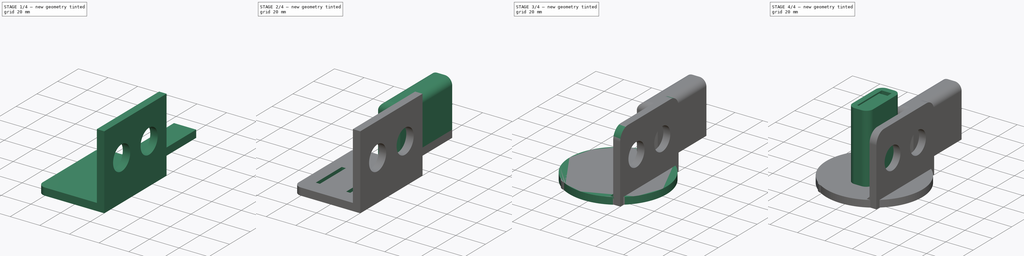
[diagram: build sequence overview — one tinted view per stage of 4, left to right]
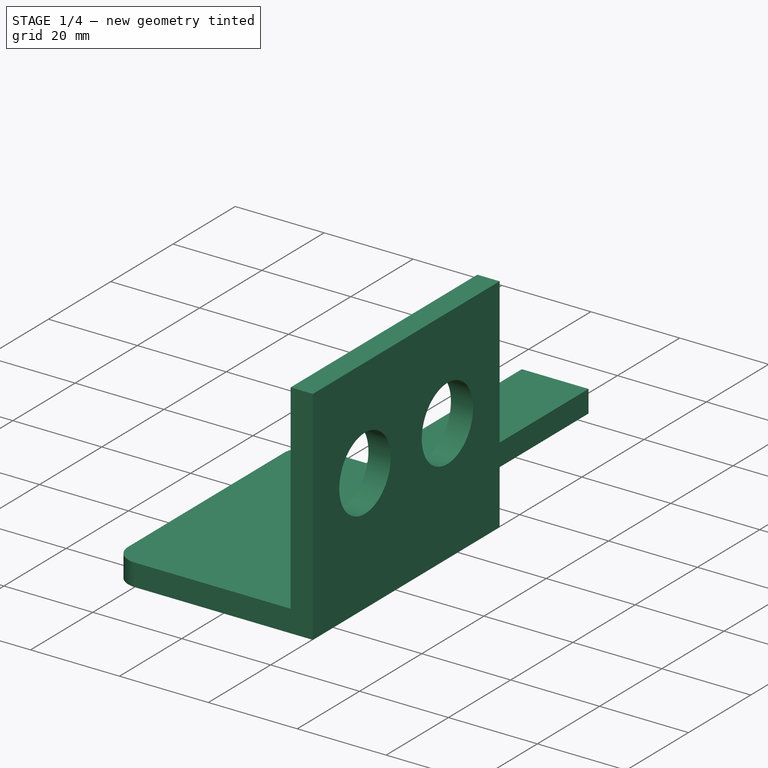
[diagram: stage 1 of 4 — iso view after this stage's code; geometry added in this stage tinted green]
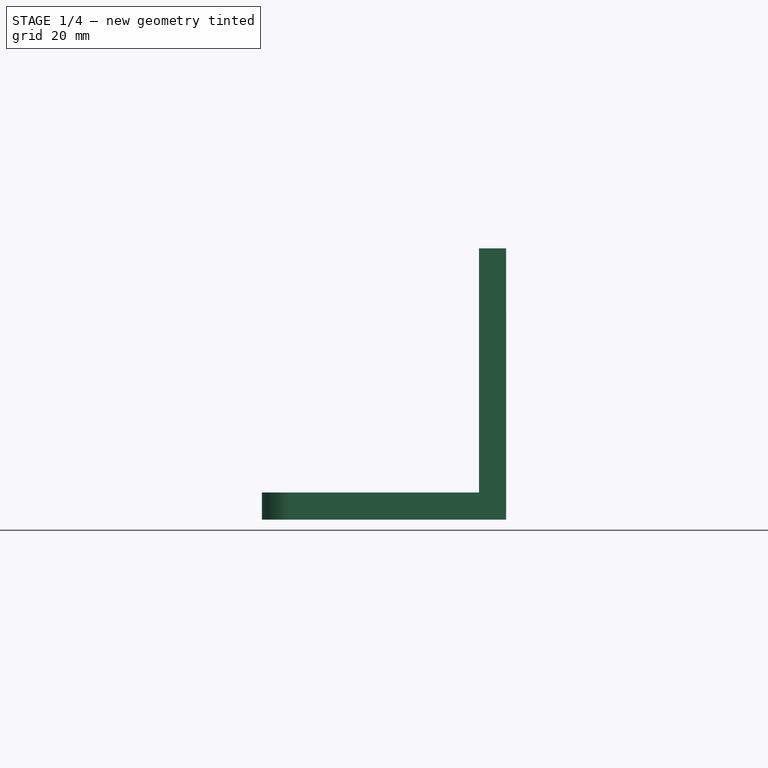
[diagram: stage 1 of 4 — front view after this stage's code; geometry added in this stage tinted green]
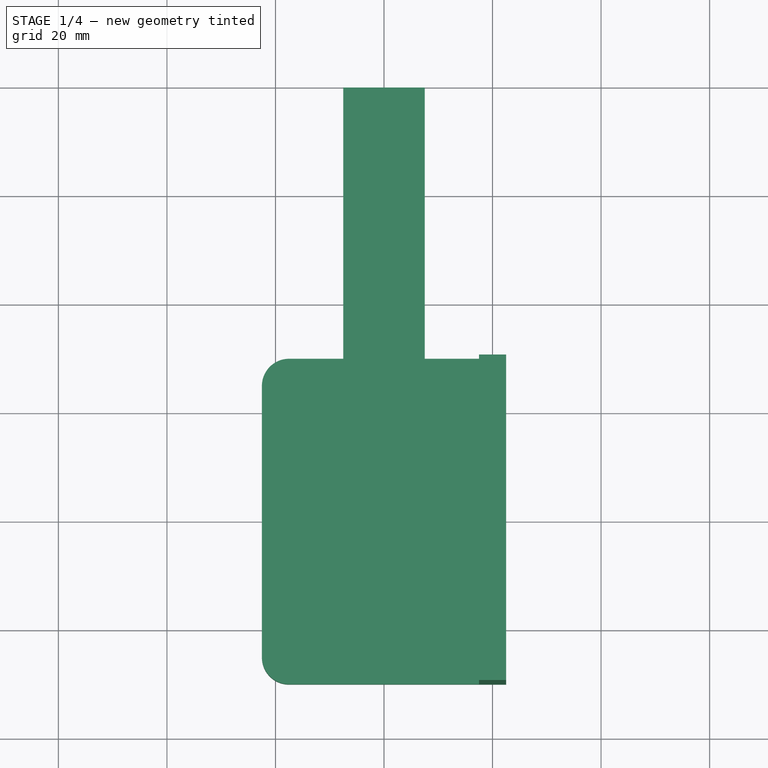
[diagram: stage 1 of 4 — top view after this stage's code; geometry added in this stage tinted green]
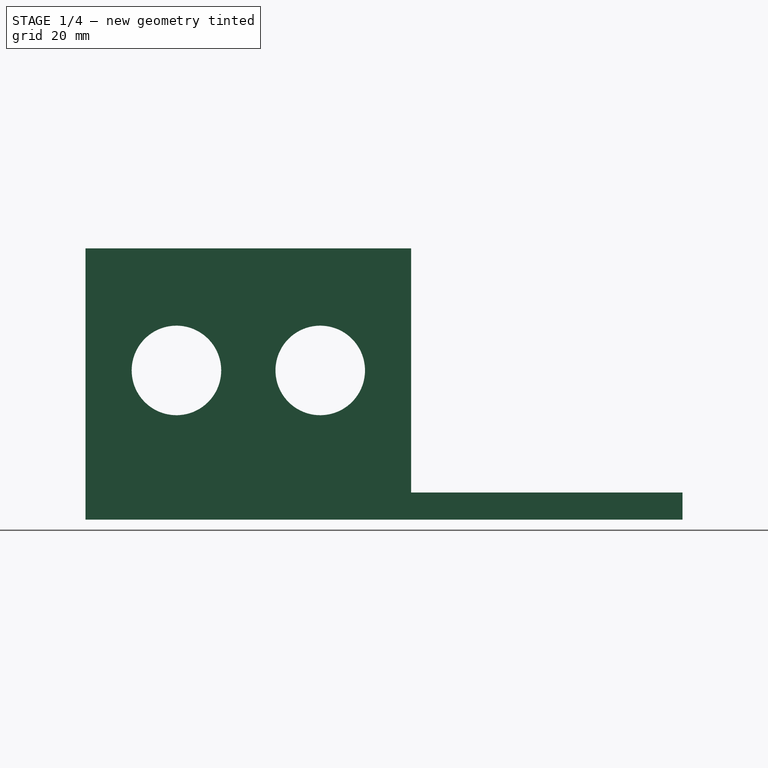
[diagram: stage 1 of 4 — right view after this stage's code; geometry added in this stage tinted green]
FCSTD DOCUMENT  (FreeCAD 0.20R29410 (Git))
Label: GarageMonitor
License: All rights reserved
LicenseURL: http://en.wikipedia.org/wiki/All_rights_reserved
objects: Sketcher::SketchObject×10, PartDesign::Pad×5, PartDesign::Plane×5, PartDesign::Pocket×4, PartDesign::Body×2, PartDesign::Fillet×2, PartDesign::Hole×1, PartDesign::Chamfer×1
note: 43 computed .brp shape members not serialized (recipe doc carries the construction recipe); baked Part::Feature solids carry a one-line shape summary decoded from their .brp

FEATURE [PartDesign::Body] Body002  label="ChannelWallMount"
  Group = -> [Sketch014,Pad005,DatumPlane004,Sketch015,Pad006,DatumPlane005,Sketch016,Pocket002,Sketch017,Hole003]
  Origin = -> Origin002
  Tip = -> Hole003
FEATURE [Sketcher::SketchObject] Sketch018  label="SensorAttachmentBasePlateSketch"
  FullyConstrained = true
  MapMode = 5
  Support = -> [XY_Plane003]
  expr: Constraints[15] = .Constraints.Width / 2
  sketch-geometry (10):
    g0: LineSegment StartX=22.5 StartY=30 StartZ=0 EndX=22.5 EndY=-30 EndZ=0
    g1: LineSegment StartX=22.5 StartY=-30 StartZ=0 EndX=-17.5 EndY=-30 EndZ=0
    g2: LineSegment StartX=-22.5 StartY=25 StartZ=0 EndX=-22.5 EndY=-25 EndZ=0
    g3: ArcOfCircle CenterX=-17.5 CenterY=25 CenterZ=0 NormalX=0 NormalY=0 NormalZ=1 AngleXU=0 Radius=5 StartAngle=1.5708 EndAngle=3.14159
    g4: ArcOfCircle CenterX=-17.5 CenterY=-25 CenterZ=0 NormalX=0 NormalY=0 NormalZ=1 AngleXU=0 Radius=5 StartAngle=3.14159 EndAngle=4.71239
    g5: LineSegment StartX=-7.5 StartY=30 StartZ=0 EndX=-7.5 EndY=80 EndZ=0
    g6: LineSegment StartX=-7.5 StartY=80 StartZ=0 EndX=7.5 EndY=80 EndZ=0
    g7: LineSegment StartX=7.5 StartY=80 StartZ=0 EndX=7.5 EndY=30 EndZ=0
    g8: LineSegment StartX=-17.5 StartY=30 StartZ=0 EndX=-7.5 EndY=30 EndZ=0
    g9: LineSegment StartX=7.5 StartY=30 StartZ=0 EndX=22.5 EndY=30 EndZ=0
  constraints (30):
    c: Coincident(g0,g1)
    c: Horizontal(g1)
    c: Vertical(g2)
    c: Coincident(g3,g2)
    c: Coincident(g4,g2)
    c: Coincident(g4,g1)
    c: Equal(g3,g4)
    c: Symmetric(g0,g0,g-1)
    c: Radius(g3) = 5
    c: Angle(g3) = 1.5708
    c: Angle(g4) = 1.5708
    c: Horizontal(g2,g4)
    c: Vertical(g3,g3)
    c: DistanceY(g0,g0) = 60  'Height'
    c: DistanceX(g2,g0) = 45  'Width'
    c: DistanceX(g-1,g0) = 22.5
    c: Vertical(g5)
    c: Coincident(g5,g6)
    c: Coincident(g6,g7)
    c: Vertical(g7)
    c: Coincident(g8,g3)
    c: Coincident(g8,g5)
    c: Horizontal(g8)
    c: Coincident(g9,g7)
    c: Coincident(g9,g0)
    c: Horizontal(g9)
    c: Symmetric(g5,g6,g-2)
    c: DistanceY(g5,g5) = 50  'SocketHeight'
    c: Horizontal(g7,g5)
    c: DistanceX(g6,g6) = 15
FEATURE [PartDesign::Pad] Pad007  label="SensorAttachmentBasePlate"
  Direction = (0,0,1)
  Length = 5
  Length2 = 10
  Profile = -> Sketch018
  ReferenceAxis = -> Sketch018 [N_Axis]
  Type = 0
FEATURE [PartDesign::Plane] DatumPlane006
  AttachmentOffset = pos=(0,0,5) rot=(0,0,1;0rad)
  Length = 64.8324
  MapMode = 5
  Placement = pos=(0,0,5) rot=(0,0,1;0rad)
  ResizeMode = 0
  Support = -> [XY_Plane003]
  Width = 124.832
  expr: .AttachmentOffset.Base.z = Pad007.Length
FEATURE [Sketcher::SketchObject] Sketch019
  ExternalGeometry = -> [Pad007]
  FullyConstrained = true
  MapMode = 5
  Placement = pos=(0,0,5) rot=(0,0,1;0rad)
  Support = -> [DatumPlane006]
  sketch-geometry (4):
    g0: LineSegment StartX=17.5 StartY=30 StartZ=0 EndX=22.5 EndY=30 EndZ=0
    g1: LineSegment StartX=22.5 StartY=30 StartZ=0 EndX=22.5 EndY=-30 EndZ=0
    g2: LineSegment StartX=22.5 StartY=-30 StartZ=0 EndX=17.5 EndY=-30 EndZ=0
    g3: LineSegment StartX=17.5 StartY=-30 StartZ=0 EndX=17.5 EndY=30 EndZ=0
  constraints (11):
    c: Coincident(g0,g1)
    c: Coincident(g1,g2)
    c: Coincident(g2,g3)
    c: Coincident(g3,g0)
    c: Horizontal(g0)
    c: Horizontal(g2)
    c: Vertical(g1)
    c: Vertical(g3)
    c: PointOnObject(g0,g-3)
    c: Coincident(g1,g-4)
    c: DistanceX(g2,g2) = 5
FEATURE [PartDesign::Pad] Pad008  label="TransducerRiser"
  BaseFeature = -> Pad007
  Direction = (0,0,1)
  Length = 45
  Length2 = 10
  Profile = -> Sketch019
  ReferenceAxis = -> Sketch019 [N_Axis]
  Type = 0
FEATURE [PartDesign::Plane] DatumPlane007
  AttachmentOffset = pos=(0,0,22.5) rot=(0,0,1;0rad)
  Length = 128.166
  MapMode = 5
  Placement = pos=(22.5,-5e-15,5e-15) rot=(0.57735,0.57735,0.57735;2.0944rad)
  ResizeMode = 0
  Support = -> [YZ_Plane003]
  Width = 93.1659
  expr: .AttachmentOffset.Base.z = Sketch018.Constraints.Width / 2
FEATURE [Sketcher::SketchObject] Sketch020
  ExternalGeometry = -> [Pad008]
  FullyConstrained = true
  MapMode = 5
  Placement = pos=(22.5,-5e-15,5e-15) rot=(0.57735,0.57735,0.57735;2.0944rad)
  Support = -> [DatumPlane007]
  expr: Constraints[4] = <<TransducerRiser>>.Length / 2
  sketch-geometry (2):
    g0: Circle CenterX=-13.25 CenterY=27.5 CenterZ=0 NormalX=0 NormalY=0 NormalZ=1 AngleXU=0 Radius=8.25
    g1: Circle CenterX=13.25 CenterY=27.5 CenterZ=0 NormalX=0 NormalY=0 NormalZ=1 AngleXU=0 Radius=8.25
  constraints (5):
    c: Equal(g0,g1)
    c: Radius(g0) = 8.25
    c: Symmetric(g0,g1,g-2)
    c: DistanceX(g0,g1) = 26.5
    c: DistanceY(g-3,g1) = 22.5
FEATURE [PartDesign::Pocket] Pocket003
  BaseFeature = -> Pad008
  Direction = (-1,1e-16,-1e-16)
  Length = 5
  Length2 = 5
  Profile = -> Sketch020
  ReferenceAxis = -> Sketch020 [N_Axis]
  Type = 0
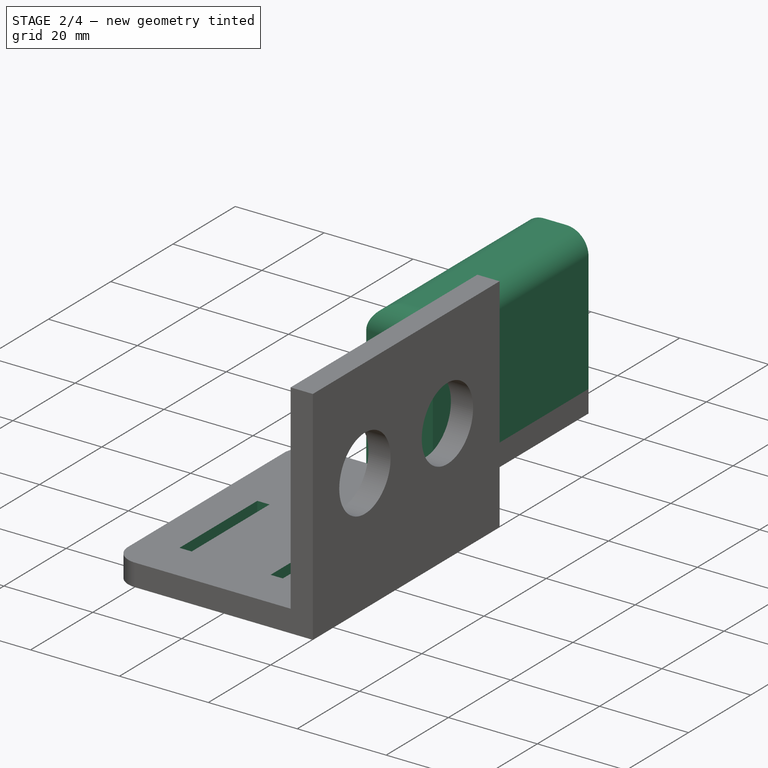
[diagram: stage 2 of 4 — iso view after this stage's code; geometry added in this stage tinted green]
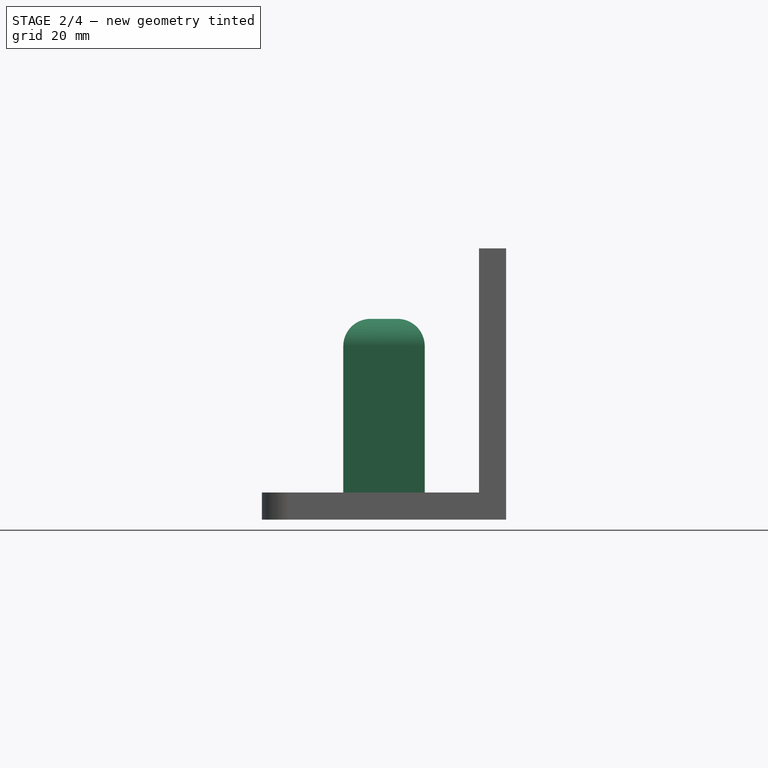
[diagram: stage 2 of 4 — front view after this stage's code; geometry added in this stage tinted green]
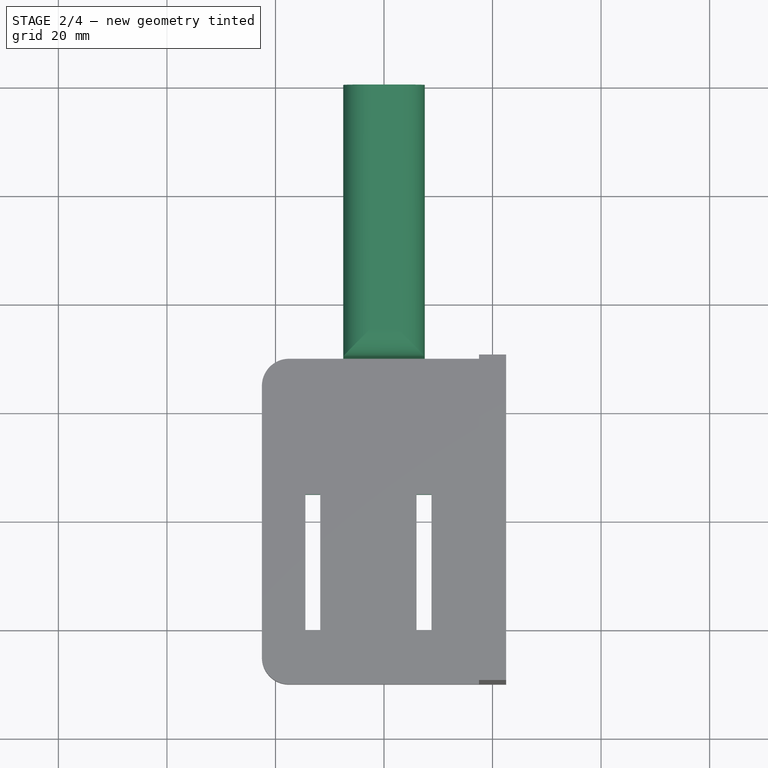
[diagram: stage 2 of 4 — top view after this stage's code; geometry added in this stage tinted green]
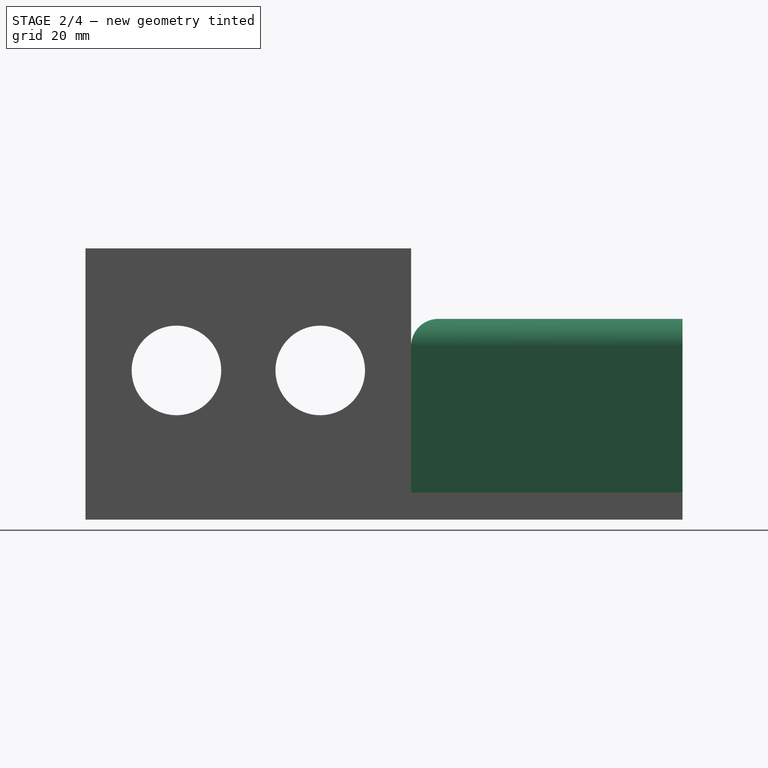
[diagram: stage 2 of 4 — right view after this stage's code; geometry added in this stage tinted green]
FEATURE [Sketcher::SketchObject] Sketch021
  ExternalGeometry = -> [Pocket003]
  FullyConstrained = true
  MapMode = 5
  Placement = pos=(0,0,5) rot=(0,0,1;0rad)
  Support = -> [DatumPlane006]
  sketch-geometry (8):
    g0: LineSegment StartX=-14.5 StartY=5 StartZ=0 EndX=-11.75 EndY=5 EndZ=0
    g1: LineSegment StartX=-11.75 StartY=5 StartZ=0 EndX=-11.75 EndY=-20 EndZ=0
    g2: LineSegment StartX=-11.75 StartY=-20 StartZ=0 EndX=-14.5 EndY=-20 EndZ=0
    g3: LineSegment StartX=-14.5 StartY=-20 StartZ=0 EndX=-14.5 EndY=5 EndZ=0
    g4: LineSegment StartX=6 StartY=5 StartZ=0 EndX=8.75 EndY=5 EndZ=0
    g5: LineSegment StartX=8.75 StartY=5 StartZ=0 EndX=8.75 EndY=-20 EndZ=0
    g6: LineSegment StartX=8.75 StartY=-20 StartZ=0 EndX=6 EndY=-20 EndZ=0
    g7: LineSegment StartX=6 StartY=-20 StartZ=0 EndX=6 EndY=5 EndZ=0
  constraints (24):
    c: Coincident(g0,g1)
    c: Coincident(g1,g2)
    c: Coincident(g2,g3)
    c: Coincident(g3,g0)
    c: Horizontal(g0)
    c: Horizontal(g2)
    c: Vertical(g1)
    c: Vertical(g3)
    c: Coincident(g4,g5)
    c: Coincident(g5,g6)
    c: Coincident(g6,g7)
    c: Coincident(g7,g4)
    c: Horizontal(g4)
    c: Horizontal(g6)
    c: Vertical(g5)
    c: Vertical(g7)
    c: Equal(g0,g4)
    c: DistanceX(g0,g0) = 2.75
    c: Equal(g3,g7)
    c: DistanceX(g0,g4) = 20.5
    c: DistanceY(g-3,g2) = 10
    c: DistanceY(g3,g3) = 25
    c: Horizontal(g0,g4)
    c: DistanceX(g-1,g4) = 6
FEATURE [PartDesign::Pocket] Pocket004
  BaseFeature = -> Pocket003
  Direction = (0,0,-1)
  Length = 5
  Length2 = 5
  Profile = -> Sketch021
  ReferenceAxis = -> Sketch021 [N_Axis]
  Type = 1
FEATURE [Sketcher::SketchObject] Sketch022
  ExternalGeometry = -> [Pocket004]
  FullyConstrained = true
  MapMode = 5
  Placement = pos=(0,0,5) rot=(0,0,1;0rad)
  Support = -> [DatumPlane006]
  sketch-geometry (4):
    g0: LineSegment StartX=-7.5 StartY=80 StartZ=0 EndX=7.5 EndY=80 EndZ=0
    g1: LineSegment StartX=7.5 StartY=80 StartZ=0 EndX=7.5 EndY=30 EndZ=0
    g2: LineSegment StartX=7.5 StartY=30 StartZ=0 EndX=-7.5 EndY=30 EndZ=0
    g3: LineSegment StartX=-7.5 StartY=30 StartZ=0 EndX=-7.5 EndY=80 EndZ=0
  constraints (10):
    c: Coincident(g0,g1)
    c: Coincident(g1,g2)
    c: Coincident(g2,g3)
    c: Coincident(g3,g0)
    c: Horizontal(g0)
    c: Horizontal(g2)
    c: Vertical(g1)
    c: Vertical(g3)
    c: Coincident(g0,g-3)
    c: Coincident(g1,g-4)
FEATURE [PartDesign::Pad] Pad009
  BaseFeature = -> Pocket004
  Direction = (0,0,1)
  Length = 32
  Length2 = 10
  Profile = -> Sketch022
  ReferenceAxis = -> Sketch022 [N_Axis]
  Type = 0
FEATURE [PartDesign::Fillet] Fillet002
  Base = -> Pad009 [Edge71,Edge63,Edge45]
  BaseFeature = -> Pad009
  Radius = 5
  SupportTransform = false
  UseAllEdges = false
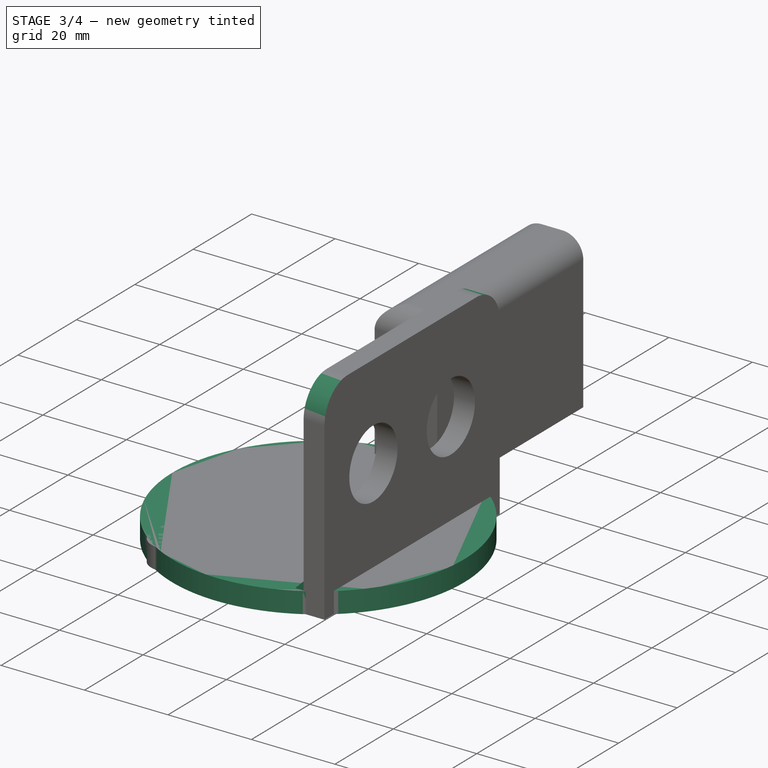
[diagram: stage 3 of 4 — iso view after this stage's code; geometry added in this stage tinted green]
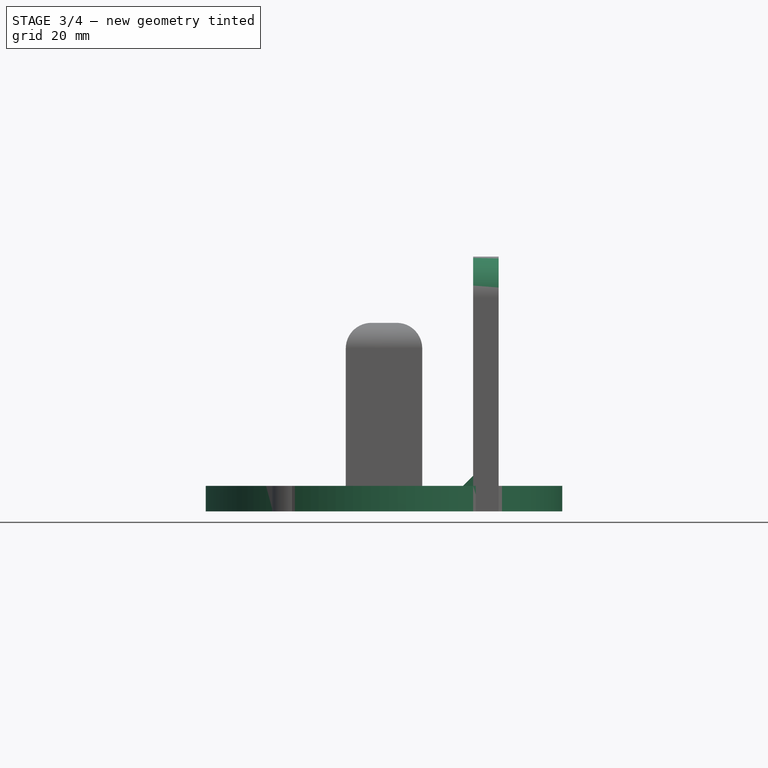
[diagram: stage 3 of 4 — front view after this stage's code; geometry added in this stage tinted green]
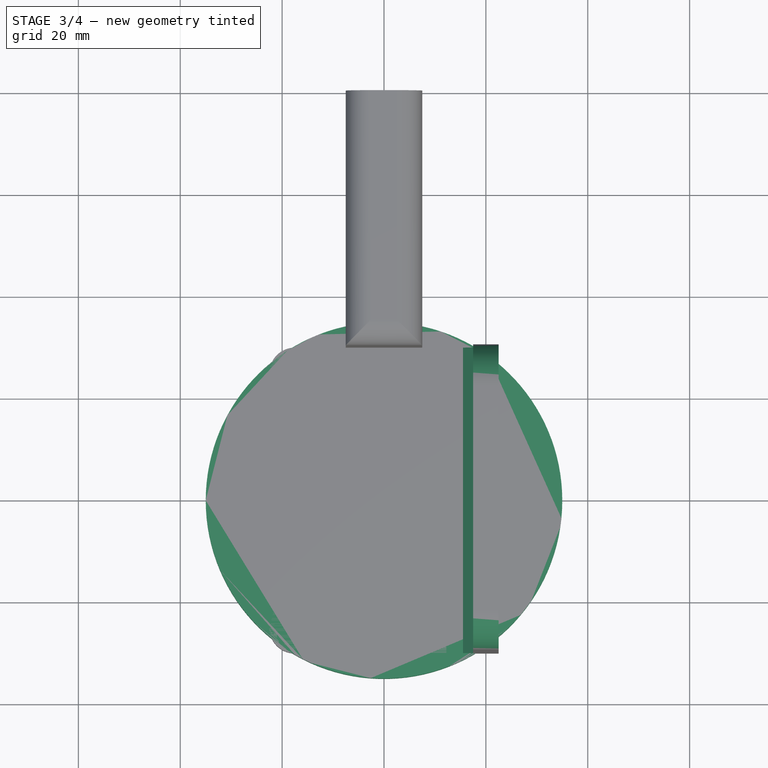
[diagram: stage 3 of 4 — top view after this stage's code; geometry added in this stage tinted green]
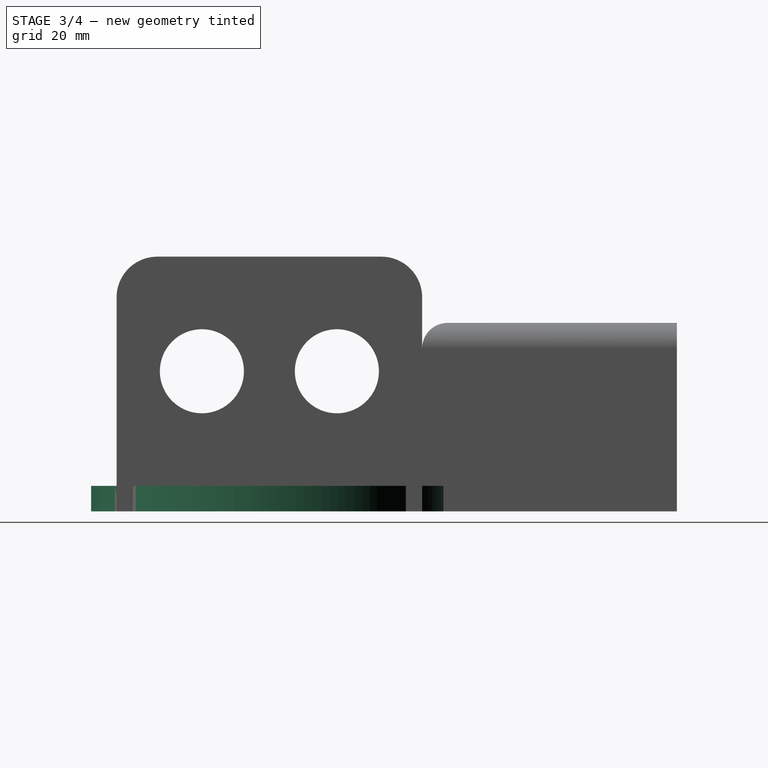
[diagram: stage 3 of 4 — right view after this stage's code; geometry added in this stage tinted green]
FEATURE [Sketcher::SketchObject] Sketch014  label="RoundWallPlateSketch"
  FullyConstrained = true
  MapMode = 5
  Support = -> [XY_Plane002]
  sketch-geometry (1):
    g0: Circle CenterX=0 CenterY=0 CenterZ=0 NormalX=0 NormalY=0 NormalZ=1 AngleXU=0 Radius=35
  constraints (2):
    c: Coincident(g0,g-1)
    c: Radius(g0) = 35  'Radius'
FEATURE [PartDesign::Pad] Pad005  label="RoundWallPlate"
  Direction = (0,0,1)
  Length = 5
  Length2 = 10
  Profile = -> Sketch014
  ReferenceAxis = -> Sketch014 [N_Axis]
  Type = 0
FEATURE [PartDesign::Plane] DatumPlane008
  AttachmentOffset = pos=(0,0,-80) rot=(0,0,1;0rad)
  Length = 62.2474
  MapMode = 5
  Placement = pos=(0,80,-1.78e-14) rot=(1,0,0;1.5708rad)
  ResizeMode = 0
  Support = -> [XZ_Plane003]
  Width = 87.2474
  expr: .AttachmentOffset.Base.z = (<<SensorAttachmentBasePlateSketch>>.Constraints.Height / 2 + <<SensorAttachmentBasePlateSketch>>.Constraints.SocketHeight) * -1
FEATURE [Sketcher::SketchObject] Sketch023
  ExternalGeometry = -> [Fillet002]
  FullyConstrained = true
  MapMode = 5
  Placement = pos=(0,80,-1.78e-14) rot=(1,0,0;1.5708rad)
  Support = -> [DatumPlane008]
  sketch-geometry (6):
    g0: LineSegment StartX=3.625 StartY=28.25 StartZ=0 EndX=-2.375 EndY=28.25 EndZ=0
    g1: LineSegment StartX=-2.375 StartY=28.25 StartZ=0 EndX=-2.375 EndY=7 EndZ=0
    g2: LineSegment StartX=-2.375 StartY=7 StartZ=0 EndX=-3.625 EndY=7 EndZ=0
    g3: LineSegment StartX=-3.625 StartY=7 StartZ=0 EndX=-3.625 EndY=32.5 EndZ=0
    g4: LineSegment StartX=-3.625 StartY=32.5 StartZ=0 EndX=3.625 EndY=32.5 EndZ=0
    g5: LineSegment StartX=3.625 StartY=32.5 StartZ=0 EndX=3.625 EndY=28.25 EndZ=0
  constraints (17):
    c: Horizontal(g0)
    c: Coincident(g0,g1)
    c: Vertical(g1)
    c: Coincident(g1,g2)
    c: Horizontal(g2)
    c: Coincident(g2,g3)
    c: Vertical(g3)
    c: Coincident(g3,g4)
    c: Coincident(g4,g5)
    c: Coincident(g5,g0)
    c: Vertical(g5)
    c: DistanceY(g5,g5) = 4.25
    c: DistanceX(g2,g2) = 1.25
    c: DistanceY(g3,g3) = 25.5
    c: DistanceX(g4,g4) = 7.25
    c: Symmetric(g3,g4,g-2)
    c: DistanceY(g-3,g2) = 2
FEATURE [PartDesign::Pocket] Pocket005
  BaseFeature = -> Fillet002
  Direction = (0,1,-2e-16)
  Length = 45
  Length2 = 5
  Profile = -> Sketch023
  ReferenceAxis = -> Sketch023 [N_Axis]
  Reversed = true
  Type = 0
FEATURE [PartDesign::Fillet] Fillet003
  Base = -> Pocket005 [Edge100,Edge98]
  BaseFeature = -> Pocket005
  Radius = 8
  SupportTransform = false
  UseAllEdges = false
FEATURE [PartDesign::Chamfer] Chamfer001
  Angle = 45
  Base = -> Fillet003 [Edge3]
  BaseFeature = -> Fillet003
  ChamferType = 0
  FlipDirection = false
  Size = 2
  Size2 = 1
  SupportTransform = false
  UseAllEdges = false
FEATURE [PartDesign::Body] Body003  label="ChannelSensorAttachment"
  Group = -> [Sketch018,Pad007,DatumPlane006,Sketch019,Pad008,DatumPlane007,Sketch020,Pocket003,Sketch021,Pocket004,Sketch022,Pad009,Fillet002,DatumPlane008,Sketch023,Pocket005,Fillet003,Chamfer001]
  Origin = -> Origin003
  Placement = pos=(100,0,0) rot=(0,0,1;0rad)
  Tip = -> Chamfer001
  expr: .Placement.Base.x = 100mm
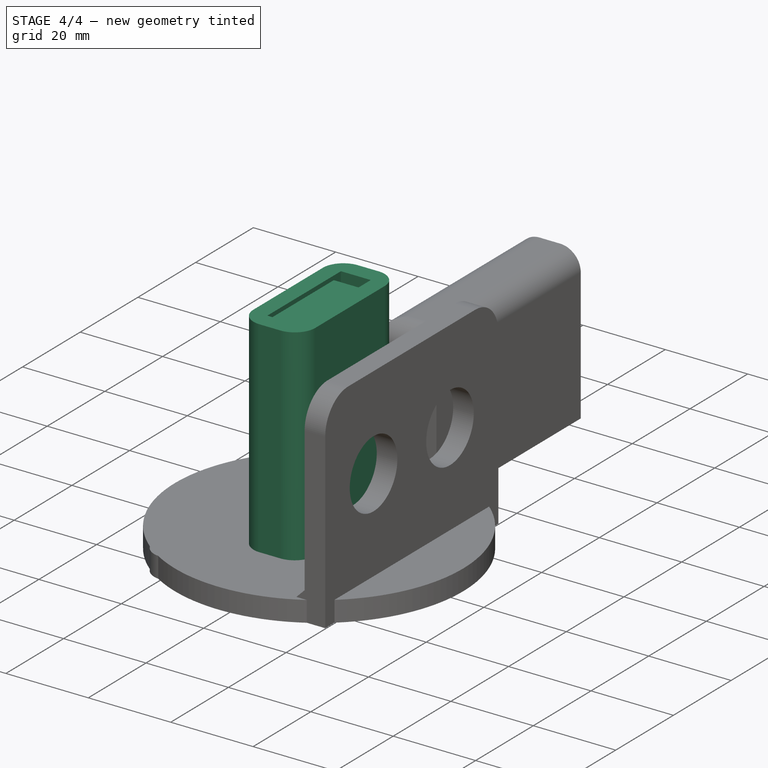
[diagram: stage 4 of 4 — iso view after this stage's code; geometry added in this stage tinted green]
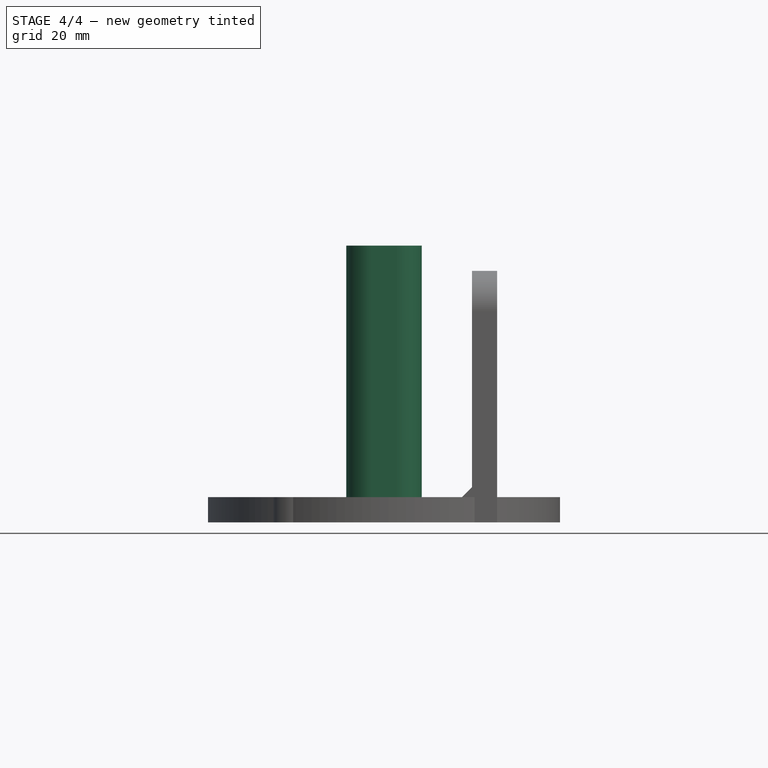
[diagram: stage 4 of 4 — front view after this stage's code; geometry added in this stage tinted green]
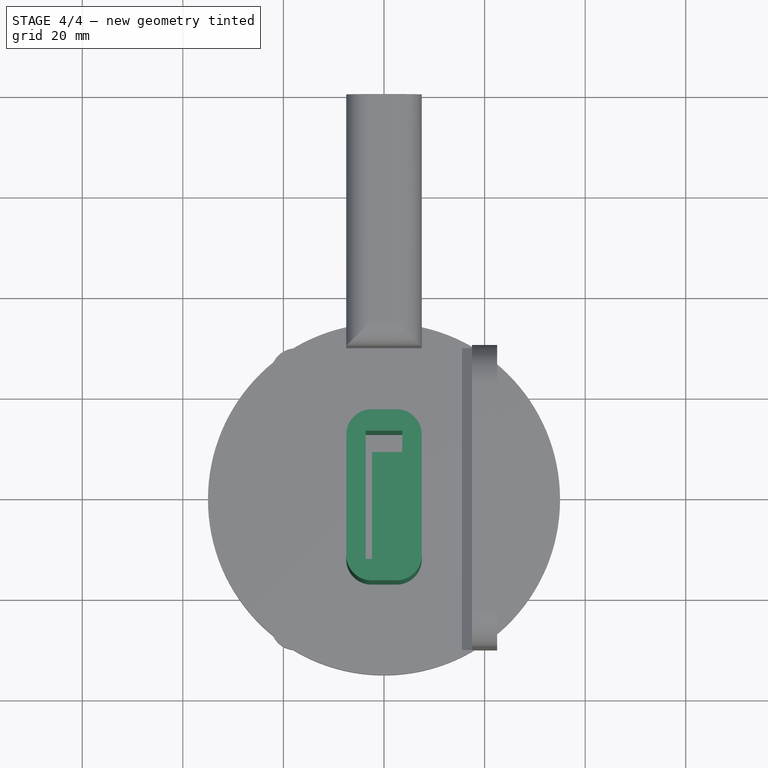
[diagram: stage 4 of 4 — top view after this stage's code; geometry added in this stage tinted green]
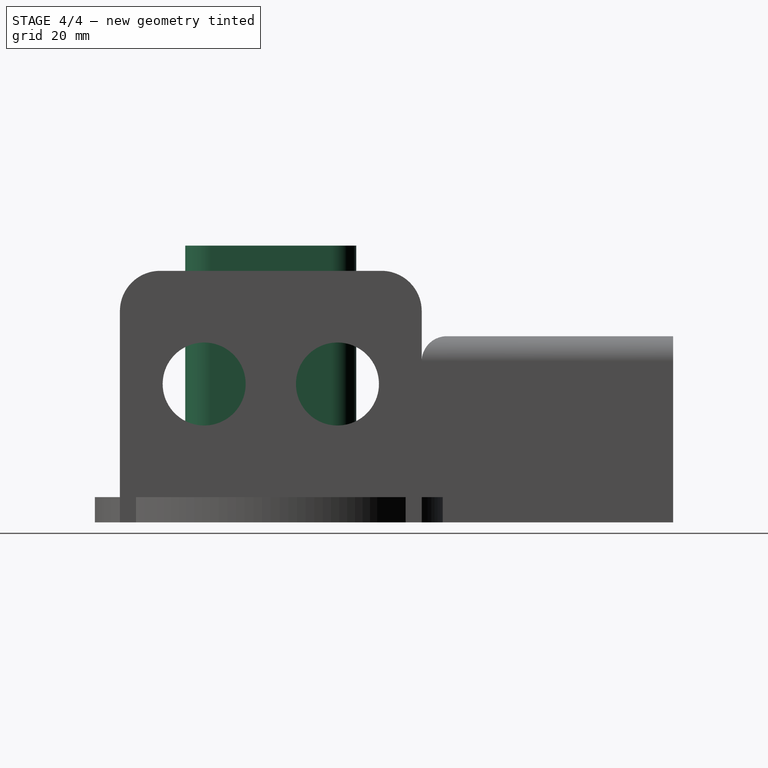
[diagram: stage 4 of 4 — right view after this stage's code; geometry added in this stage tinted green]
FEATURE [PartDesign::Plane] DatumPlane004
  AttachmentOffset = pos=(0,0,5) rot=(0,0,1;0rad)
  Length = 60
  MapMode = 5
  Placement = pos=(0,0,5) rot=(0,0,1;0rad)
  ResizeMode = 0
  Support = -> [XY_Plane002]
  Width = 60
  expr: .AttachmentOffset.Base.z = Pad005.Length
FEATURE [Sketcher::SketchObject] Sketch015  label="ChannelInsertTowerSketch"
  FullyConstrained = true
  MapMode = 5
  Placement = pos=(0,0,5) rot=(0,0,1;0rad)
  Support = -> [DatumPlane004]
  sketch-geometry (10):
    g0: ArcOfCircle CenterX=-2.5 CenterY=12 CenterZ=0 NormalX=0 NormalY=0 NormalZ=1 AngleXU=0 Radius=5 StartAngle=1.5708 EndAngle=3.14159
    g1: LineSegment StartX=-2.5 StartY=17 StartZ=0 EndX=2.5 EndY=17 EndZ=0
    g2: ArcOfCircle CenterX=2.5 CenterY=12 CenterZ=0 NormalX=0 NormalY=0 NormalZ=1 AngleXU=0 Radius=5 StartAngle=0 EndAngle=1.5708
    g3: LineSegment StartX=7.5 StartY=12 StartZ=0 EndX=7.5 EndY=-12 EndZ=0
    g4: ArcOfCircle CenterX=2.5 CenterY=-12 CenterZ=0 NormalX=0 NormalY=0 NormalZ=1 AngleXU=0 Radius=5 StartAngle=4.71239 EndAngle=6.28319
    g5: LineSegment StartX=2.5 StartY=-17 StartZ=0 EndX=-2.5 EndY=-17 EndZ=0
    g6: ArcOfCircle CenterX=-2.5 CenterY=-12 CenterZ=0 NormalX=0 NormalY=0 NormalZ=1 AngleXU=0 Radius=5 StartAngle=3.14159 EndAngle=4.71239
    g7: LineSegment StartX=-7.5 StartY=-12 StartZ=0 EndX=-7.5 EndY=12 EndZ=0
    g8: GeomPoint X=-7.5 Y=17 Z=0
    g9: GeomPoint X=7.5 Y=-17 Z=0
  constraints (22):
    c: Tangent(g0,g1) = 1.5708
    c: Tangent(g1,g2) = 1.5708
    c: Tangent(g2,g3) = 1.5708
    c: Tangent(g3,g4) = 1.5708
    c: Tangent(g4,g5) = 1.5708
    c: Tangent(g5,g6) = 1.5708
    c: Tangent(g6,g7) = 1.5708
    c: Tangent(g7,g0) = 1.5708
    c: Horizontal(g1)
    c: Horizontal(g5)
    c: Vertical(g3)
    c: Vertical(g7)
    c: Equal(g2,g4)
    c: PointOnObject(g8,g1)
    c: PointOnObject(g8,g7)
    c: PointOnObject(g9,g3)
    c: PointOnObject(g9,g5)
    c: Symmetric(g0,g2,g-2)
    c: Symmetric(g0,g6,g-1)
    c: Radius(g0) = 5
    c: DistanceY(g5,g0) = 34  'Height'
    c: DistanceX(g6,g3) = 15  'Width'
FEATURE [PartDesign::Pad] Pad006  label="ChannelInsertTower"
  BaseFeature = -> Pad005
  Direction = (0,0,1)
  Length = 50
  Length2 = 10
  Profile = -> Sketch015
  ReferenceAxis = -> Sketch015 [N_Axis]
  Type = 0
FEATURE [PartDesign::Plane] DatumPlane005
  AttachmentOffset = pos=(0,0,55) rot=(0,0,1;0rad)
  Length = 60
  MapMode = 5
  Placement = pos=(0,0,55) rot=(0,0,1;0rad)
  ResizeMode = 0
  Support = -> [XY_Plane002]
  Width = 60
  expr: .AttachmentOffset.Base.z = <<RoundWallPlate>>.Length + <<ChannelInsertTower>>.Length
FEATURE [Sketcher::SketchObject] Sketch016
  FullyConstrained = true
  MapMode = 5
  Placement = pos=(0,0,55) rot=(0,0,1;0rad)
  Support = -> [DatumPlane005]
  sketch-geometry (6):
    g0: LineSegment StartX=3.625 StartY=12.75 StartZ=0 EndX=3.625 EndY=8.5 EndZ=0
    g1: LineSegment StartX=3.625 StartY=8.5 StartZ=0 EndX=-2.375 EndY=8.5 EndZ=0
    g2: LineSegment StartX=-2.375 StartY=8.5 StartZ=0 EndX=-2.375 EndY=-12.75 EndZ=0
    g3: LineSegment StartX=-2.375 StartY=-12.75 StartZ=0 EndX=-3.625 EndY=-12.75 EndZ=0
    g4: LineSegment StartX=-3.625 StartY=-12.75 StartZ=0 EndX=-3.625 EndY=12.75 EndZ=0
    g5: LineSegment StartX=-3.625 StartY=12.75 StartZ=0 EndX=3.625 EndY=12.75 EndZ=0
  constraints (16):
    c: Coincident(g0,g1)
    c: Coincident(g1,g2)
    c: Vertical(g2)
    c: Coincident(g2,g3)
    c: Coincident(g3,g4)
    c: Coincident(g4,g5)
    c: Coincident(g5,g0)
    c: Horizontal(g1)
    c: Vertical(g0)
    c: DistanceX(g5,g5) = 7.25  'Width'
    c: Horizontal(g3)
    c: DistanceY(g4,g4) = 25.5
    c: DistanceX(g3,g3) = 1.25
    c: DistanceY(g0,g0) = 4.25
    c: Symmetric(g4,g0,g-2)
    c: Symmetric(g4,g3,g-1)
FEATURE [PartDesign::Pocket] Pocket002  label="ChannelInsert"
  BaseFeature = -> Pad006
  Direction = (0,0,-1)
  Length = 50
  Length2 = 5
  Profile = -> Sketch016
  ReferenceAxis = -> Sketch016 [N_Axis]
  Type = 0
  expr: Length = <<ChannelInsertTower>>.Length
FEATURE [Sketcher::SketchObject] Sketch017
  FullyConstrained = true
  MapMode = 5
  Placement = pos=(0,0,5) rot=(0,0,1;0rad)
  Support = -> [DatumPlane004]
  expr: .Constraints.Radius = <<RoundWallPlateSketch>>.Constraints.Radius - 10mm
  expr: Constraints[3] = .Constraints.Radius
  sketch-geometry (4):
    g0: Circle CenterX=-17.6777 CenterY=17.6777 CenterZ=0 NormalX=0 NormalY=0 NormalZ=1 AngleXU=0 Radius=3
    g1: Circle CenterX=17.6777 CenterY=17.6777 CenterZ=0 NormalX=0 NormalY=0 NormalZ=1 AngleXU=0 Radius=3
    g2: Circle CenterX=0 CenterY=-25 CenterZ=0 NormalX=0 NormalY=0 NormalZ=1 AngleXU=0 Radius=3
    g3: LineSegment StartX=-17.6777 StartY=17.6777 StartZ=0 EndX=0 EndY=0 EndZ=0
  constraints (10):
    c: Equal(g0,g1)
    c: Equal(g0,g2)
    c: PointOnObject(g2,g-2)
    c: Distance(g-1,g0) = 25
    c: Coincident(g3,g0)
    c: Coincident(g3,g-1)
    c: Angle(g-2,g3) = 0.785398
    c: Symmetric(g0,g1,g-2)
    c: DistanceY(g2,g3) = 25  'Radius'
    c: Radius(g0) = 3
FEATURE [PartDesign::Hole] Hole003
  BaseFeature = -> Pocket002
  CustomThreadClearance = 0
  Depth = 25
  DepthType = 0
  Diameter = 4.3
  DrillForDepth = false
  DrillPoint = 1
  DrillPointAngle = 118
  HoleCutCountersinkAngle = 90
  HoleCutCustomValues = false
  HoleCutDepth = 0.5
  HoleCutDiameter = 7.1
  HoleCutType = 2
  ModelThread = false
  Profile = -> Sketch017
  Tapered = false
  TaperedAngle = 90
  ThreadClass = 0
  ThreadDepth = 25
  ThreadDepthType = 0
  ThreadDirection = 0
  ThreadFit = 0
  ThreadSize = 5
  ThreadType = 3
  Threaded = false
  UseCustomThreadClearance = false
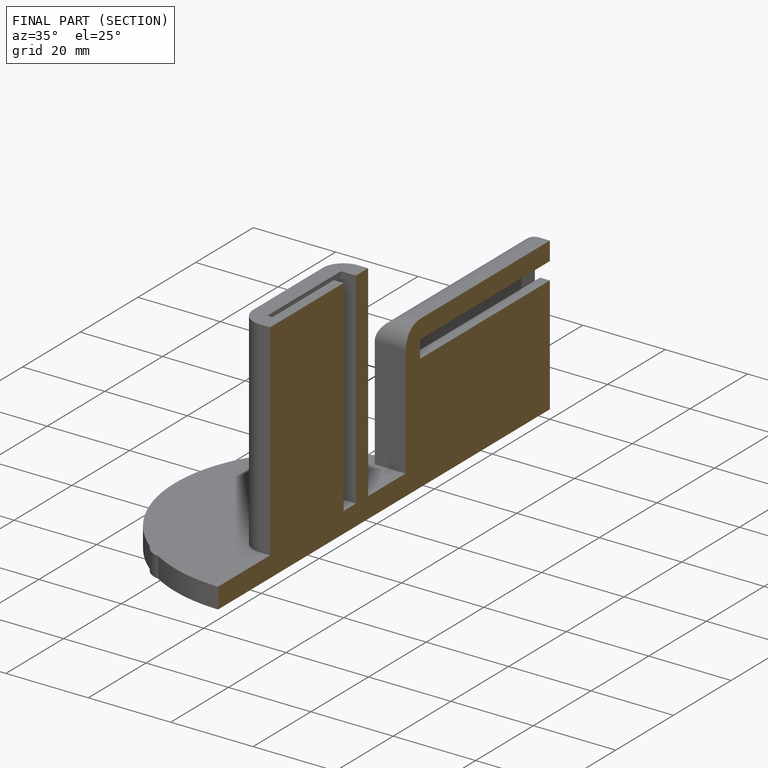
[diagram: finished part — half-section view (interior)]
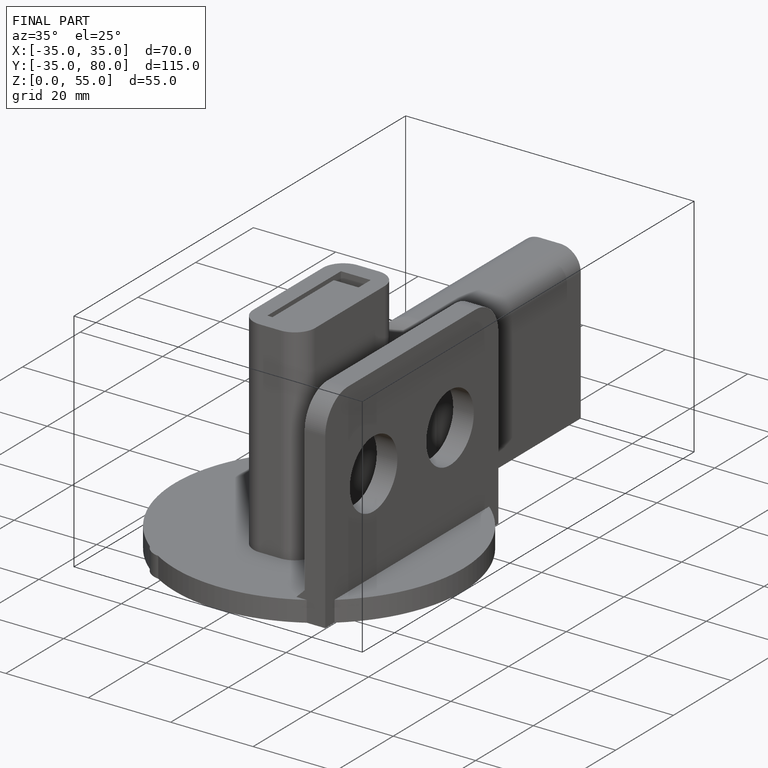
[diagram: finished part — iso view with bounding-box wireframe]
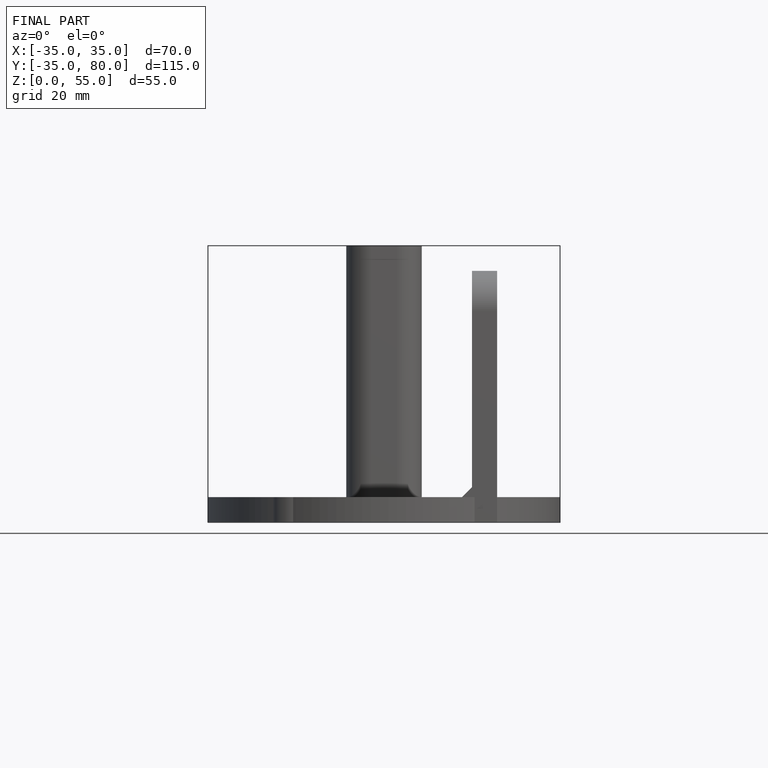
[diagram: finished part — front view with bounding-box wireframe]
